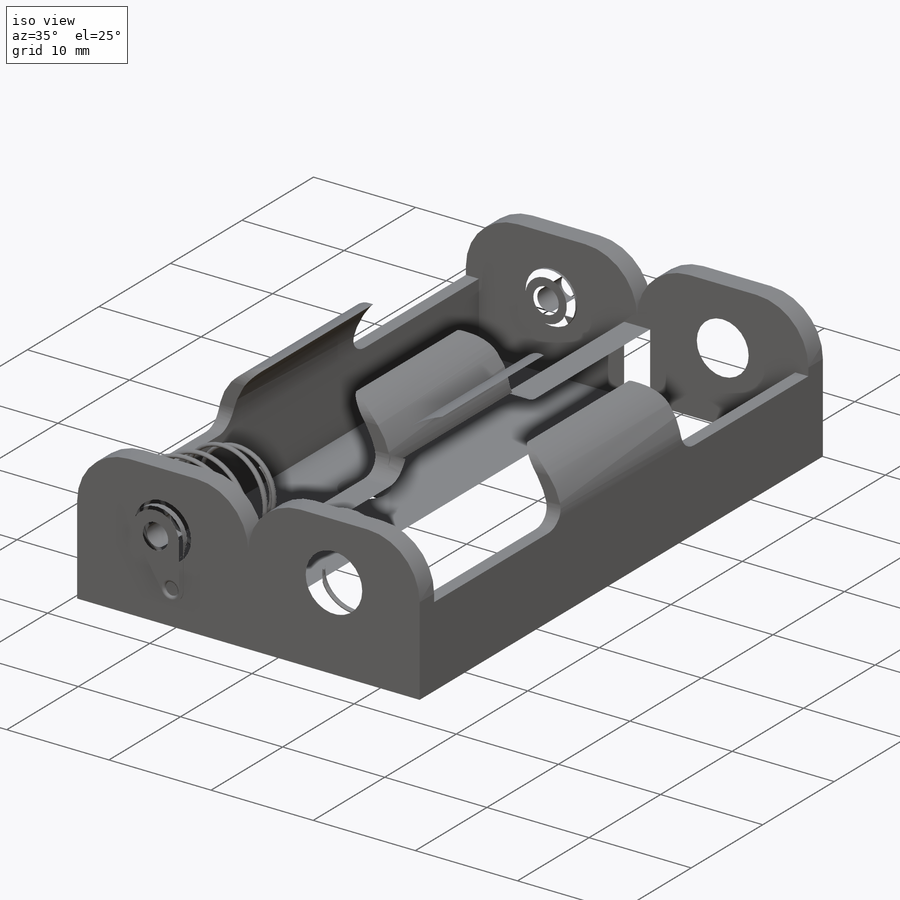
[diagram: iso view]
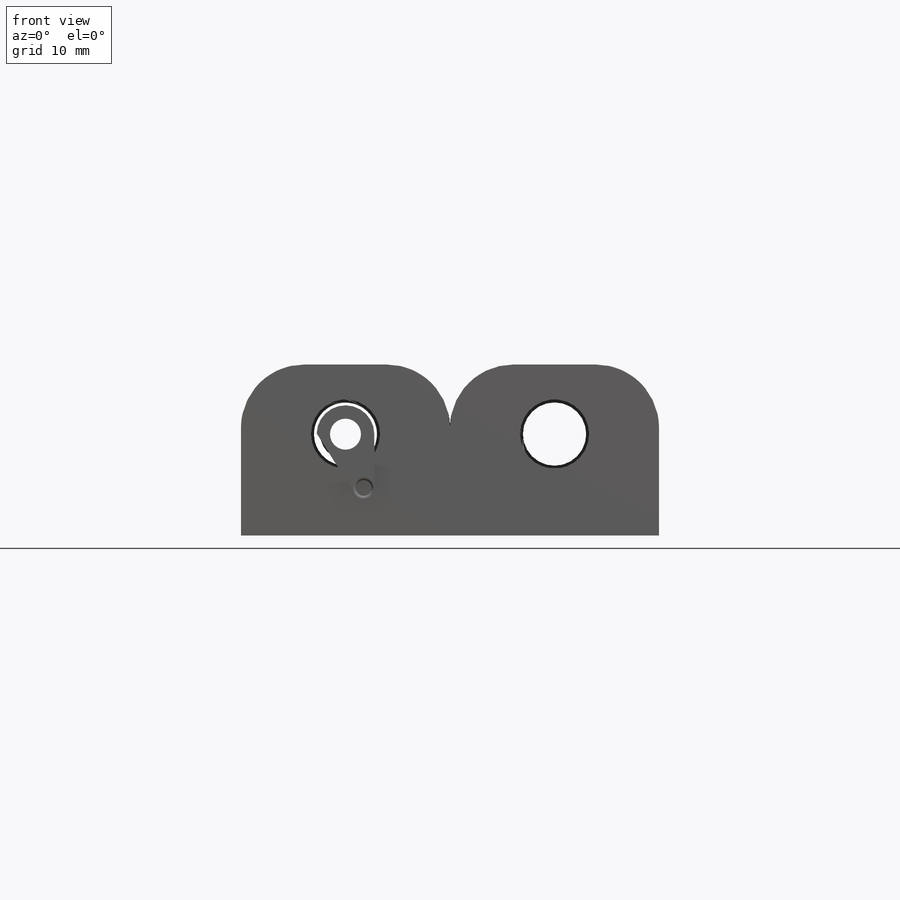
[diagram: front view]
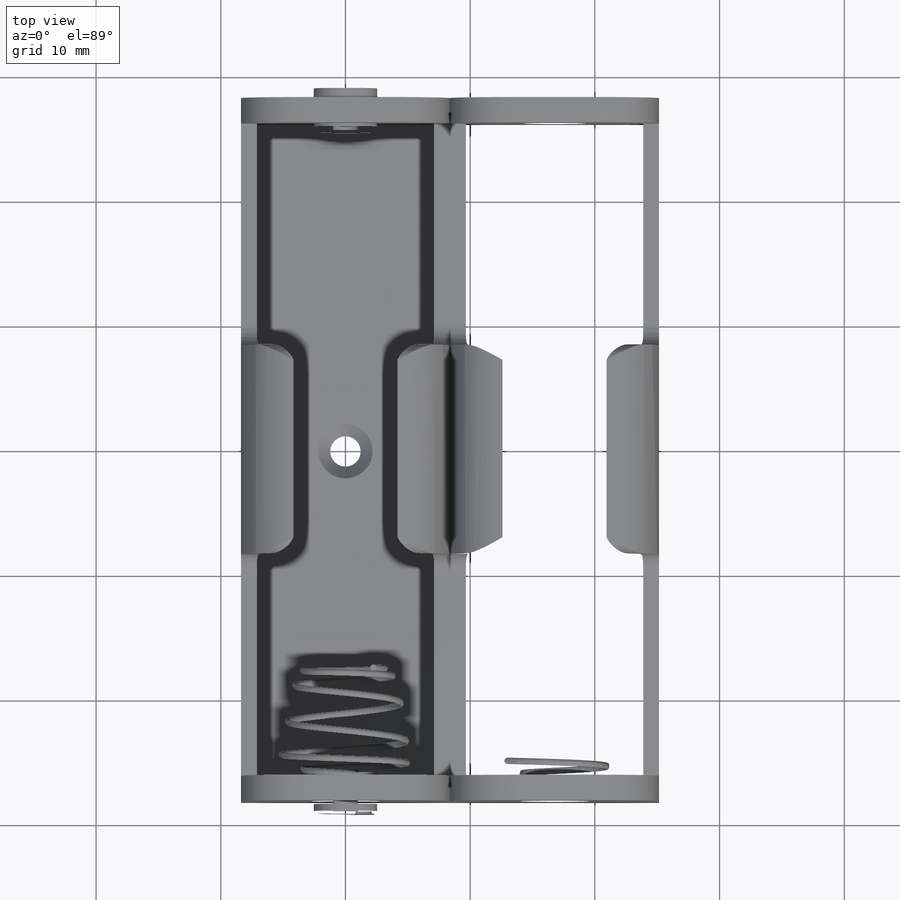
[diagram: top view]
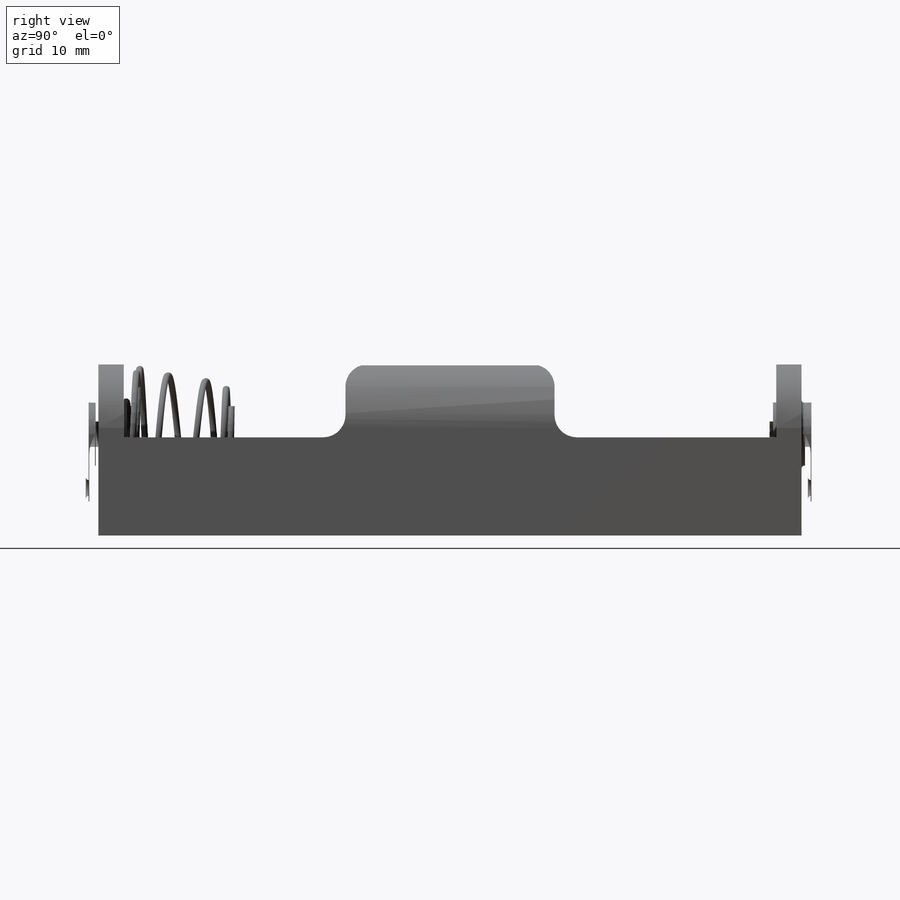
[diagram: right view]
SOLIDWORKS PART (.sldprt)
format: sldprt  version: not decoded by parser v0  size: 1,585,152 bytes
history: native  units: mm
features: fillet x12, sketch x10, extrude x3, cut_extrude x3, mirror x3, plane x2, material x1, hole x1, helix x1, sweep x1 (+12 scaffold rows collapsed)
feature tree (49):
  scaffold x12  (default folders/planes/origin — collapsed)
  material  "Material <not specified>"
  sketch  "Sketch1"  dims[D2=5.08mm D1=16.764mm]
  extrude  "Boss-Extrude1"  Depth=56.388mm
  sketch  "Sketch2"  dims[D1=17.78mm]
  cut_extrude  "Cut-Extrude1"  [1 undecoded]
  sketch  "Sketch3"  dims[D1=6.604mm D2=1.27mm]
  cut_extrude  "Cut-Extrude2"  [1 undecoded]
  hole  "CSK for #2 Flat Head Machine Screw1"  Diameter=2.4384mm Depth=1.27mm
  sketch  "Sketch5"
  sketch  "Sketch4"  dims[c1.D1=25.4mm c1.D2=93.98mm c1.4=25.4mm c1.D4=19.05mm c1.D7=33.02mm c1.D5=25.4mm c1.D3=50.8mm c1.D6=31.75mm c2.D5=58.42mm c2.D7=~8.980256mm c3.D7=90.0deg c3.D6=~2059.488517mm c3.D8=~8.980256mm c4.D8=~2059.488517mm c4.D9=~17.960512mm c5.D9=~2059.488517mm c5.D3=50.8mm c5.D4=31.75mm c5.D5=58.42mm c5.D6=~4.444873mm c6.D6=~2094.395102mm c6.D7=33.02mm c6.D8=~4.444873mm c7.D8=~1570.796327mm c7.D9=~14.816244mm c8.D9=~2059.488517mm c8.D1=12.7mm c8.D2=93.98mm c8.D3=25.4mm c9.D1=114.3mm c10.D1=~2356.19449mm c11.D1=25.4mm c11.D2=93.98mm c11.D3=50.8mm c11.D4=~17.960512mm c12.D4=~1431.169987mm c12.D5=~14.816244mm c13.D5=~2059.488517mm c13.D6=12.7mm c13.D1=25.4mm c13.D2=93.98mm c13.D3=31.75mm c13.D4=~33.297463mm c14.D4=~2094.395102mm c14.D5=~14.816244mm c15.D5=~2059.488517mm c15.D1=25.4mm c15.D2=101.6mm c15.D3=31.75mm c15.D4=~3.666174mm c16.D4=~2094.395102mm c16.D5=30.48mm c16.D6=~9.919017mm c17.D6=~2059.488517mm c17.Thru Hole Dia.=2.4384mm c17.Thru Hole Depth=1.27mm c17.Near C'Sink Dia.=4.3688mm c17.D4=~3.666174mm c17.Near C'Sink Angle=~1431.169987mm]  [1 undecoded]
  sketch  "Sketch6"  dims[D1=8.128mm]
  cut_extrude  "Cut-Extrude3"  [1 undecoded]
  sketch  "Sketch7"  dims[D1=1.143mm]
  helix  "Helix/Spiral1"  Pitch=2356.19449mm
  plane  "Plane1"
  sketch  "Sketch8"  dims[D1=0.508mm]
  sweep  "Sweep1"
  sketch  "Sketch9"  dims[D1=1.524mm]
  extrude  "Boss-Extrude2"  Depth=0.508mm
  sketch  "Sketch10"  dims[c1.D2=3.048mm c1.D3=3.048mm c2.D2=~9.080812mm c3.D2=~261.799388mm c3.D3=4.318mm c3.D1=0.0mm]
  extrude  "Boss-Extrude3"  Depth=0.508mm
  fillet  "Fillet10"  Radius=0.2286mm
  mirror  "Mirror1"
  mirror  "Mirror2"
  fillet  "Fillet11"  Radius=0.2286mm
  fillet  "Fillet12"  Radius=0.2286mm
  fillet  "Fillet13"  Radius=0.2286mm
  fillet  "Fillet14"  Radius=0.2286mm
  fillet  "Fillet15"  Radius=0.2286mm
  fillet  "Fillet16"  Radius=0.2286mm
  fillet  "Fillet17"  Radius=0.2286mm
  fillet  "Fillet18"  Radius=0.2286mm
  fillet  "Fillet19"  Radius=0.2286mm
  fillet  "Fillet20"  Radius=0.508mm
  fillet  "Fillet21"  Radius=0.508mm
  plane  "Plane3"  Offset=0mm
  mirror  "Mirror8"
decode coverage: 26 of 34 modeling features carry decoded parameters
note: ~ marks probable driven/reference dimensions
note: 3 parameter values undecoded
summary: no parameter record found for 3 features
note: suppression state not decoded; provenance and decode notes live in map.json
note: 1 required parameter value undecoded (feature->parameter linkage not recoverable at this tier; creation-order binding heuristic only, values carry confidence <= 0.55)
